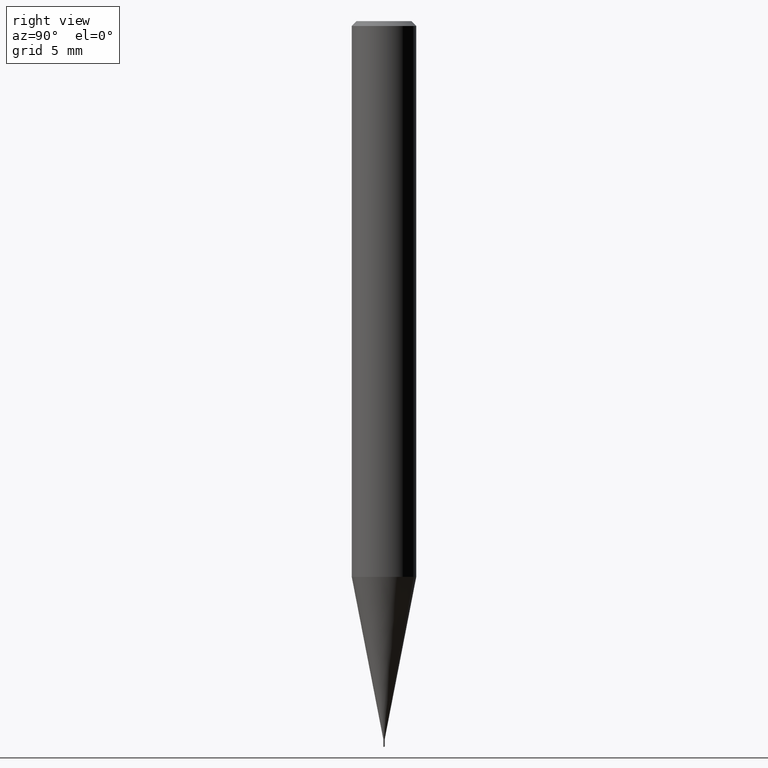
[diagram: clean part render]
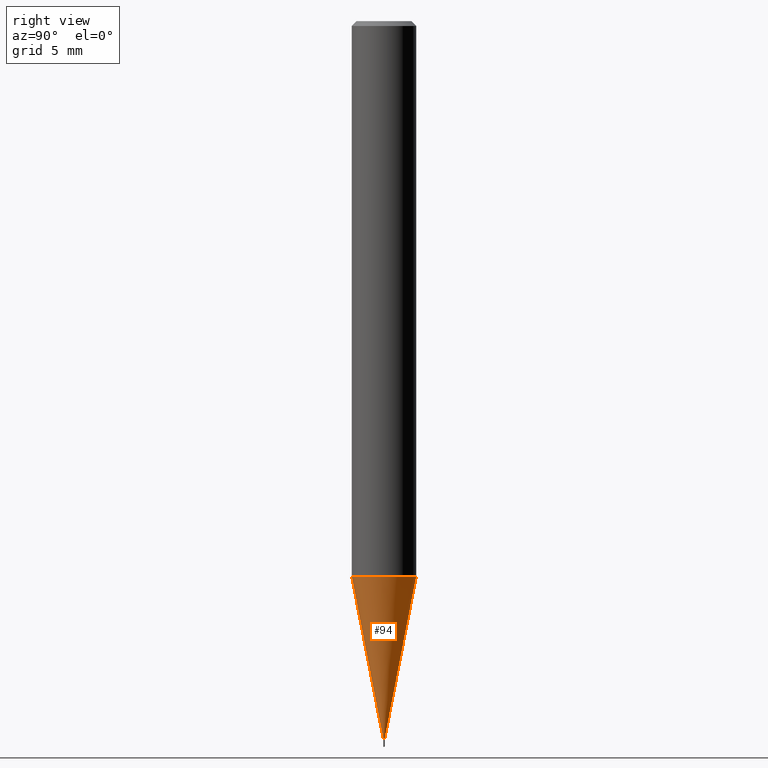
[diagram: same view with one face highlighted and labeled with its STEP entity id]
A machine part, right view. The second image highlights one B-rep face of the part: STEP entity #94.
In plain terms, the highlighted conical surface has half-angle 11 deg.
Its self-contained STEP definition (entity closure, byte-faithful):
#94=ADVANCED_FACE('',(#235),#236,.T.);
#108=EDGE_CURVE('',#196,#122,#252,.T.);
#120=EDGE_CURVE('',#182,#122,#267,.T.);
#122=VERTEX_POINT('',#269);
#132=VERTEX_POINT('',#282);
#168=EDGE_CURVE('',#182,#132,#324,.T.);
#182=VERTEX_POINT('',#338);
#192=EDGE_CURVE('',#132,#196,#348,.T.);
#196=VERTEX_POINT('',#352);
#235=FACE_OUTER_BOUND('',#385,.T.);
#236=CONICAL_SURFACE('',#386,1.0237,0.191981401646118);
#252=LINE('',#408,#409);
#267=CIRCLE('',#427,1.99995);
#269=CARTESIAN_POINT('',(2.44915147732706E-016,-1.99995,-34.455));
#282=CARTESIAN_POINT('',(0.0,0.04745,-44.5));
#324=LINE('',#494,#495);
#338=CARTESIAN_POINT('',(0.0,1.99995,-34.455));
#348=CIRCLE('',#528,0.04745);
#352=CARTESIAN_POINT('',(5.81075714888718E-018,-0.04745,-44.5));
#385=EDGE_LOOP('',(#560,#561,#562,#563));
#386=AXIS2_PLACEMENT_3D('',#564,#565,#566);
#408=CARTESIAN_POINT('',(1.25362952440797E-016,-1.0237,-39.4775));
#409=VECTOR('',#588,1.0);
#427=AXIS2_PLACEMENT_3D('',#617,#618,#619);
#494=CARTESIAN_POINT('',(-1.25362952440797E-016,1.0237,-39.4775));
#495=VECTOR('',#699,1.0);
#528=AXIS2_PLACEMENT_3D('',#709,#710,#711);
#560=ORIENTED_EDGE('',*,*,#168,.F.);
#561=ORIENTED_EDGE('',*,*,#120,.T.);
#562=ORIENTED_EDGE('',*,*,#108,.F.);
#563=ORIENTED_EDGE('',*,*,#192,.F.);
#564=CARTESIAN_POINT('',(0.0,0.0,-39.4775));
#565=DIRECTION('',(-0.0,-0.0,1.0));
#566=DIRECTION('',(0.0,1.0,0.0));
#588=DIRECTION('',(2.33660118667044E-017,-0.190804267785904,0.98162810238638));
#617=CARTESIAN_POINT('',(0.0,0.0,-34.455));
#618=DIRECTION('',(0.0,0.0,-1.0));
#619=DIRECTION('',(0.0,1.0,0.0));
#699=DIRECTION('',(2.33660118667044E-017,-0.190804267785904,-0.98162810238638));
#709=CARTESIAN_POINT('',(0.0,0.0,-44.5));
#710=DIRECTION('',(0.0,0.0,-1.0));
#711=DIRECTION('',(0.0,1.0,0.0));